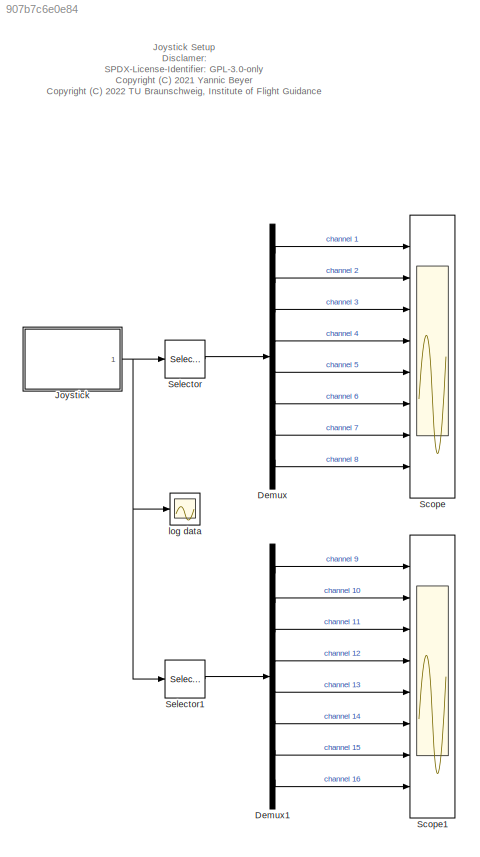
MODEL slx_907b7c6e0e84
KIND model
CONFIG AbsTol = auto
CONFIG EnableMultiTasking = off
CONFIG FixedStep = auto
CONFIG MaxStep = auto
CONFIG MinStep = auto
CONFIG RelTol = 1e-3
CONFIG SampleTimeConstraint = Unconstrained
CONFIG Solver = VariableStepAuto
CONFIG SolverName = VariableStepAuto
CONFIG StartTime = 0.0
CONFIG StopTime = 10.0
BLOCK [Demux] Demux
  DisplayOption = bar
  Outputs = 8
  Ports = [1, 8]
BLOCK [Demux] Demux1
  DisplayOption = bar
  Outputs = 8
  Ports = [1, 8]
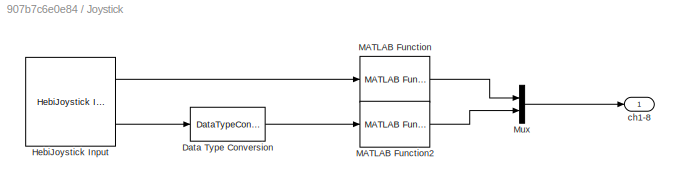
BLOCK [SubSystem] Joystick
  Ports = [0, 1]
  RequestExecContextInheritance = off
BLOCK [DataTypeConversion] Joystick/Data Type Conversion
  OutDataTypeStr = double
  RndMeth = Floor
  SaturateOnIntegerOverflow = off
BLOCK [Reference] Joystick/HebiJoystick Input  REF=matlabinput_lib/HebiJoystick Input
  Ports = [0, 2]
  SourceBlock = matlabinput_lib/HebiJoystick Input
  SourceProductName = MatlabInput
  SourceType = HebiJoystick Input
BLOCK [Reference] Joystick/MATLAB Function  REF=joystick_lib/Calibrated Joystick/MATLAB Function  (lib defined in slx_c24d1f50ed98)
  Ports = [1, 1]
  SourceBlock = joystick_lib/Calibrated Joystick/MATLAB Function
  SourceProductName = LADAC
  SourceType = SubSystem
BLOCK [Reference] Joystick/MATLAB Function2  REF=joystick_lib/Calibrated Joystick/MATLAB Function2  (lib defined in slx_c24d1f50ed98)
  Ports = [1, 1]
  SourceBlock = joystick_lib/Calibrated Joystick/MATLAB Function2
  SourceProductName = LADAC
  SourceType = SubSystem
BLOCK [Mux] Joystick/Mux
  DisplayOption = bar
  Inputs = 2
  Ports = [2, 1]
BLOCK [Outport] Joystick/ch1-8
  IconDisplay = Port number
BLOCK [Scope] Scope
  Floating = off
  NumInputPorts = 8
  Ports = [8]
  ScopeSpecificationString = Simulink.scopes.TimeScopeBlockCfg('CurrentConfiguration', extmgr.ConfigurationSet(extmgr.Configuration('Core','General UI',true),extmgr.Configuration('Core','Source UI',true),extmgr.Configuration('Sources','WiredSimulink',true,'DataLoggingVariableName','joystickOut'),extmgr.Configuration('Visuals','Time Domain',true,'SerializedDisplays',{struct('MinYLimReal','-1.22165','MaxYLimReal','1.24685','YLa...<+1708ch>
BLOCK [Scope] Scope1
  Floating = off
  NumInputPorts = 8
  Ports = [8]
  ScopeSpecificationString = Simulink.scopes.TimeScopeBlockCfg('CurrentConfiguration', extmgr.ConfigurationSet(extmgr.Configuration('Core','General UI',true),extmgr.Configuration('Core','Source UI',true),extmgr.Configuration('Sources','WiredSimulink',true,'DataLoggingVariableName','ScopeData1'),extmgr.Configuration('Visuals','Time Domain',true,'SerializedDisplays',{struct('MinYLimReal','-0.125','MaxYLimReal','1.125','YLabelRe...<+1702ch>
BLOCK [Selector] Selector
  IndexOptions = Index vector (dialog)
  Indices = 1:8
  InputPortWidth = 16
  OutputSizes = 1
  Ports = [1, 1]
BLOCK [Selector] Selector1
  IndexOptions = Index vector (dialog)
  Indices = 9:16
  InputPortWidth = 16
  OutputSizes = 1
  Ports = [1, 1]
BLOCK [Scope] log data
  Floating = off
  NumInputPorts = 1
  Ports = [1]
  ScopeSpecificationString = Simulink.scopes.TimeScopeBlockCfg('CurrentConfiguration', extmgr.ConfigurationSet(extmgr.Configuration('Core','General UI',true),extmgr.Configuration('Core','Source UI',true),extmgr.Configuration('Sources','WiredSimulink',true,'DataLoggingVariableName','joystickOut','DataLogging',true),extmgr.Configuration('Visuals','Time Domain',true,'SerializedDisplays',{struct('MinYLimReal','-0.125','MaxYLimRea...<+1610ch>
ANNOTATION (root): Joystick Setup Disclamer: SPDX-License-Identifier: GPL-3.0-only <copyright redacted>
LINE Demux1:1 -> Scope1:1
LINE Demux1:2 -> Scope1:2
LINE Demux1:3 -> Scope1:3
LINE Demux1:4 -> Scope1:4
LINE Demux1:5 -> Scope1:5
LINE Demux1:6 -> Scope1:6
LINE Demux1:7 -> Scope1:7
LINE Demux1:8 -> Scope1:8
LINE Demux:1 -> Scope:1
LINE Demux:2 -> Scope:2
LINE Demux:3 -> Scope:3
LINE Demux:4 -> Scope:4
LINE Demux:5 -> Scope:5
LINE Demux:6 -> Scope:6
LINE Demux:7 -> Scope:7
LINE Demux:8 -> Scope:8
LINE Joystick/Data Type Conversion:1 -> Joystick/MATLAB Function2:1
LINE Joystick/HebiJoystick Input:1 -> Joystick/MATLAB Function:1
LINE Joystick/HebiJoystick Input:2 -> Joystick/Data Type Conversion:1
LINE Joystick/MATLAB Function2:1 -> Joystick/Mux:2
LINE Joystick/MATLAB Function:1 -> Joystick/Mux:1
LINE Joystick/Mux:1 -> Joystick/ch1-8:1
NET Joystick:1 -> Selector1:1, Selector:1, log data:1
LINE Selector1:1 -> Demux1:1
LINE Selector:1 -> Demux:1
note: NET lines group one-source signal fan-out (src -> all destinations, sorted); 1:1 wires keep LINE
